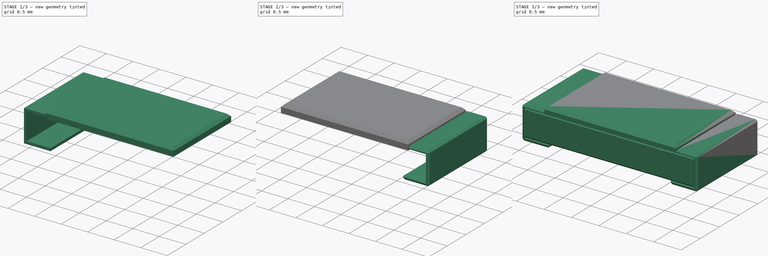
[diagram: build sequence overview — one tinted view per stage of 3, left to right]
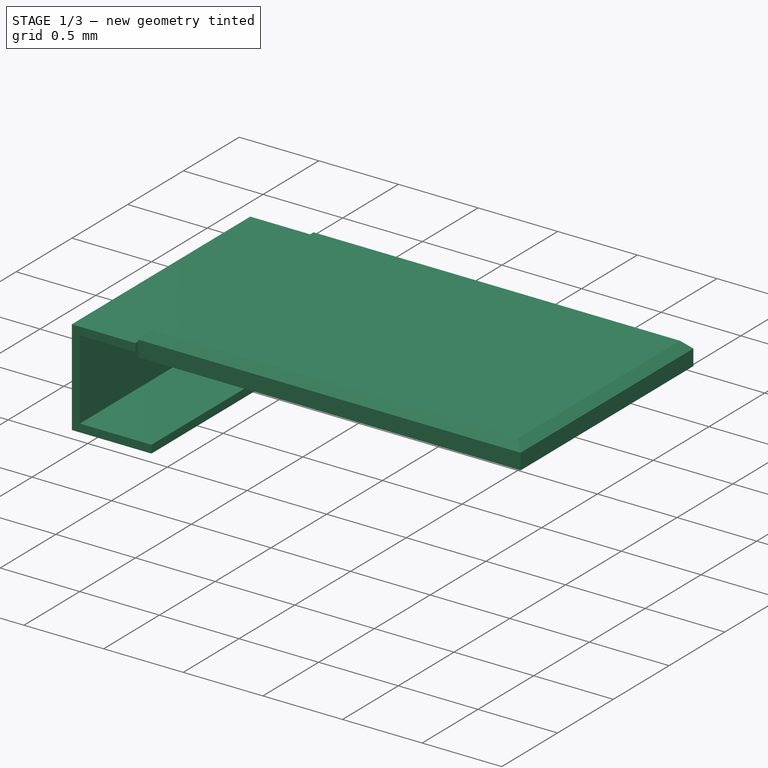
[diagram: stage 1 of 3 — iso view after this stage's code; geometry added in this stage tinted green]
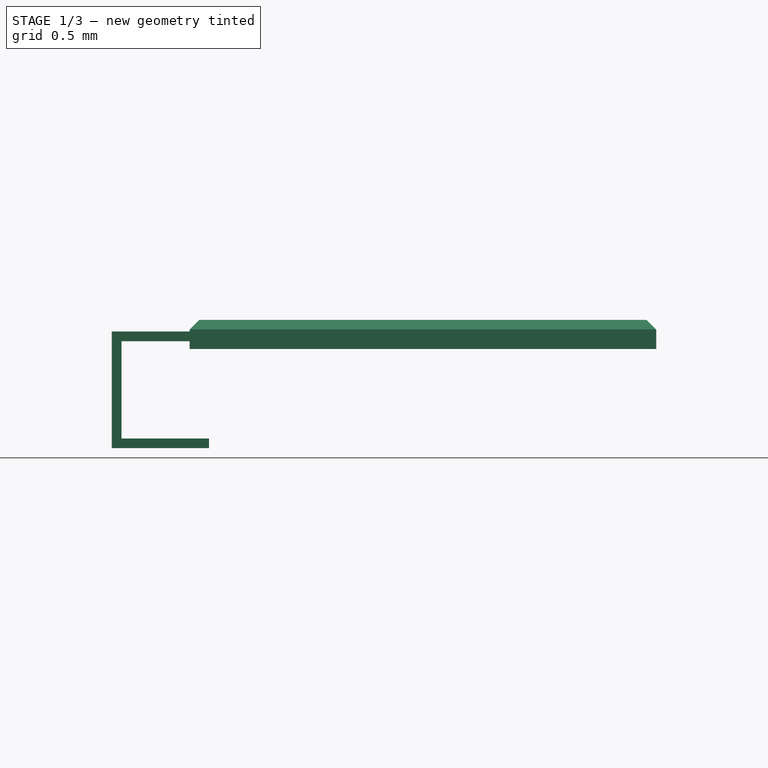
[diagram: stage 1 of 3 — front view after this stage's code; geometry added in this stage tinted green]
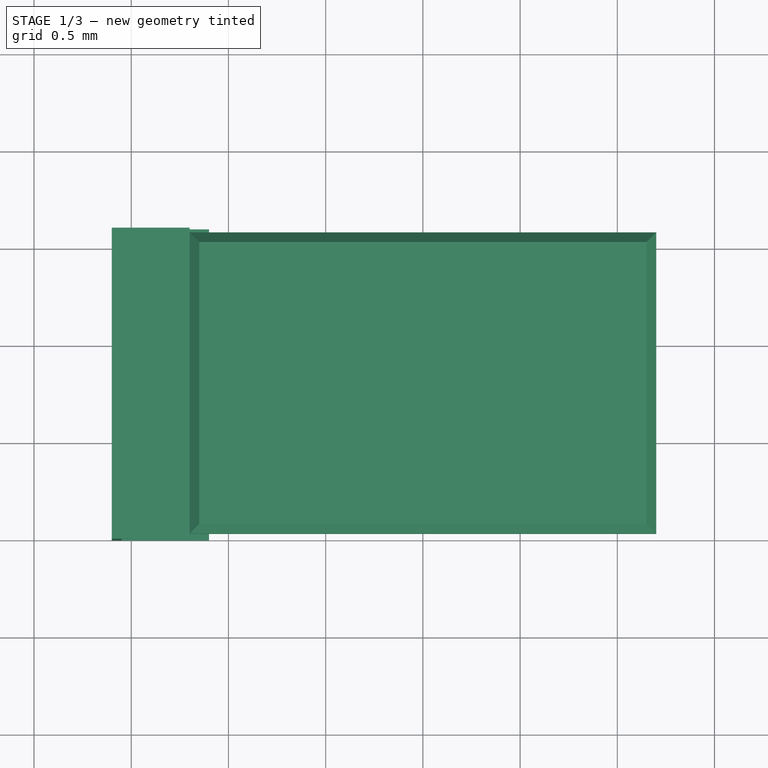
[diagram: stage 1 of 3 — top view after this stage's code; geometry added in this stage tinted green]
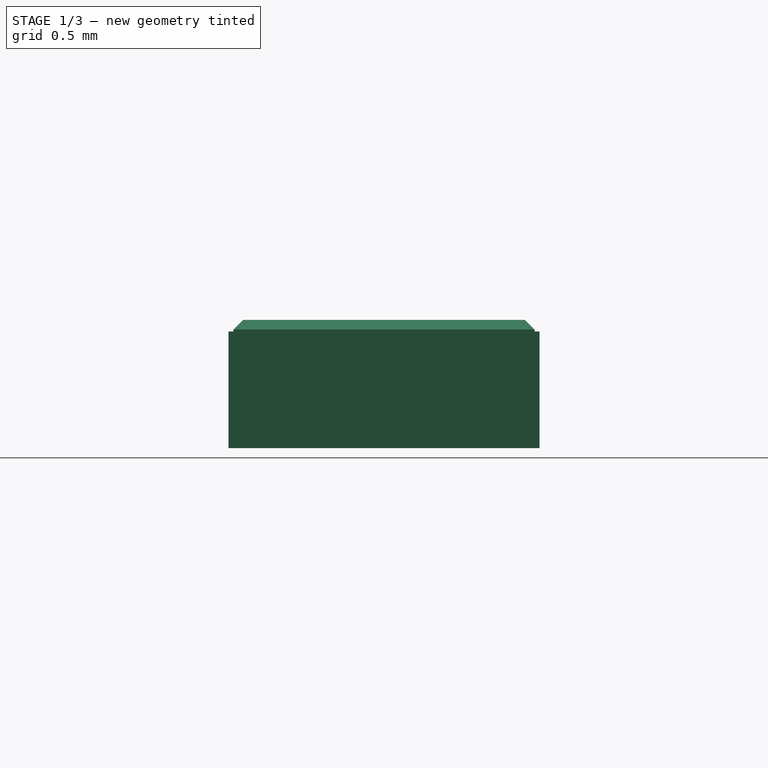
[diagram: stage 1 of 3 — right view after this stage's code; geometry added in this stage tinted green]
FCSTD DOCUMENT  (FreeCAD 0.16R6707 (Git))
Label: RESC3216x66_EIA1206_METRIC3216
License: All rights reserved
LicenseURL: http://en.wikipedia.org/wiki/All_rights_reserved
objects: Part::Chamfer×3, Part::Box×2, Sketcher::SketchObject×1, Part::Extrusion×1, Part::Mirroring×1, Part::MultiFuse×1
note: 9 computed .brp shape members not serialized (recipe doc carries the construction recipe); baked Part::Feature solids carry a one-line shape summary decoded from their .brp

FEATURE [Sketcher::SketchObject] Sketch  label="PadShape"
  Placement = pos=(0,0,0) rot=(1,0,0;1.5708rad)
  sketch-geometry (8):
    g0: LineSegment StartX=-1.1 StartY=0 StartZ=0 EndX=-1.6 EndY=0 EndZ=0
    g1: LineSegment StartX=-1.6 StartY=0 StartZ=0 EndX=-1.6 EndY=0.6 EndZ=0
    g2: LineSegment StartX=-1.6 StartY=0.6 StartZ=0 EndX=-1.2 EndY=0.6 EndZ=0
    g3: LineSegment StartX=-1.2 StartY=0.6 StartZ=0 EndX=-1.2 EndY=0.55 EndZ=0
    g4: LineSegment StartX=-1.2 StartY=0.55 StartZ=0 EndX=-1.55 EndY=0.55 EndZ=0
    g5: LineSegment StartX=-1.1 StartY=0 StartZ=0 EndX=-1.1 EndY=0.05 EndZ=0
    g6: LineSegment StartX=-1.1 StartY=0.05 StartZ=0 EndX=-1.55 EndY=0.05 EndZ=0
    g7: LineSegment StartX=-1.55 StartY=0.55 StartZ=0 EndX=-1.55 EndY=0.05 EndZ=0
  constraints (24):
    c: DistanceX(g0,g-1) = 1.1
    c: DistanceY(g-1,g0) = 0
    c: Distance(g2) = 0.4
    c: Vertical(g3)
    c: Vertical(g5)
    c: Distance(g5) = 0.05
    c: Horizontal(g6)
    c: Coincident(g7,g4)
    c: Coincident(g7,g6)
    c: Vertical(g7)
    c: Distance(g3) = 0.05
    c: DistanceX(g1,g4) = 0.05
    c: Distance(g0) = 0.5
    c: Distance(g1) = 0.6
    c: Coincident(g0,g1)
    c: Coincident(g5,g6)
    c: Coincident(g0,g5)
    c: Coincident(g3,g4)
    c: Coincident(g2,g3)
    c: Coincident(g1,g2)
    c: Horizontal(g2)
    c: Horizontal(g4)
    c: Vertical(g1)
    c: Horizontal(g0)
FEATURE [Part::Extrusion] Extrude
  Base = -> Sketch
  Dir = (0,1.6,0)
  Solid = true
FEATURE [Part::Box] Box001  label="Cube"
  Height = 0.15
  Length = 2.4
  Placement = pos=(-1.2,0.025,0.51) rot=(0,0,1;0rad)
  Width = 1.55
FEATURE [Part::Chamfer] Chamfer002
  Base = -> Box001
  Edges = 4 edges r=0.05: [Edge2,Edge6,Edge10,Edge12]
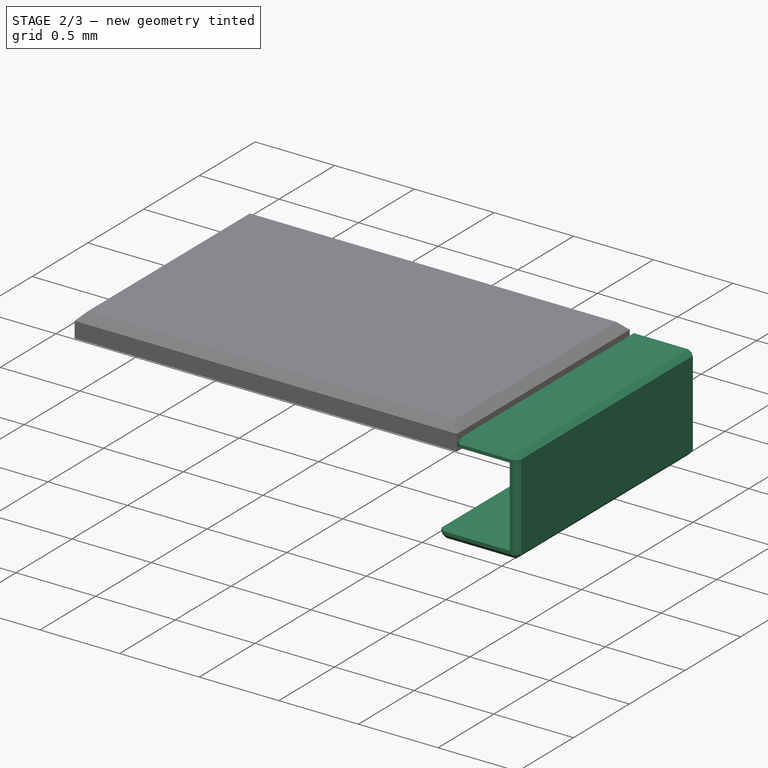
[diagram: stage 2 of 3 — iso view after this stage's code; geometry added in this stage tinted green]
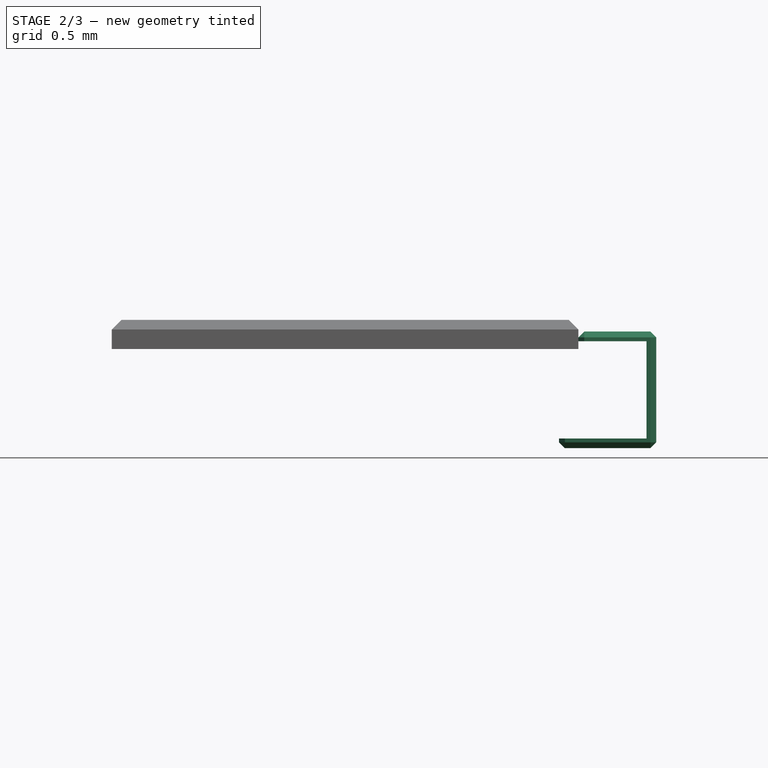
[diagram: stage 2 of 3 — front view after this stage's code; geometry added in this stage tinted green]
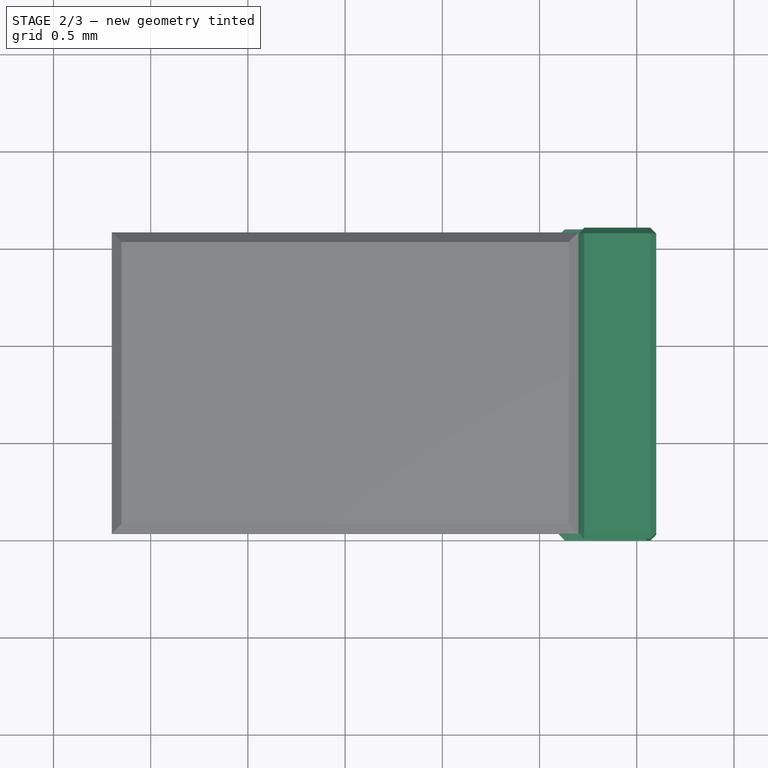
[diagram: stage 2 of 3 — top view after this stage's code; geometry added in this stage tinted green]
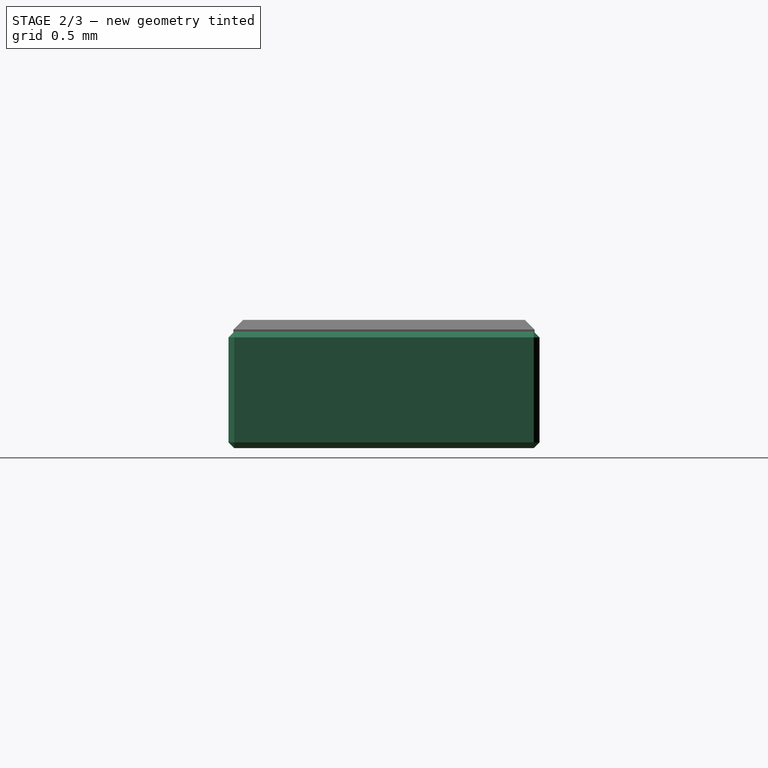
[diagram: stage 2 of 3 — right view after this stage's code; geometry added in this stage tinted green]
FEATURE [Part::Chamfer] Chamfer001  label="ChamferPads"
  Base = -> Extrude
  Edges = 14 edges r=0.03: [Edge1,Edge2,Edge3,Edge4,Edge5,Edge6,Edge7,Edge8,Edge9,Edge10,Edge12,Edge13,Edge23,Edge24]
FEATURE [Part::Mirroring] Part__Mirroring  label="ChamferPads (Mirror #1)"
  Base = (0,0,0)
  Normal = (1,0,0)
  Source = -> Chamfer001
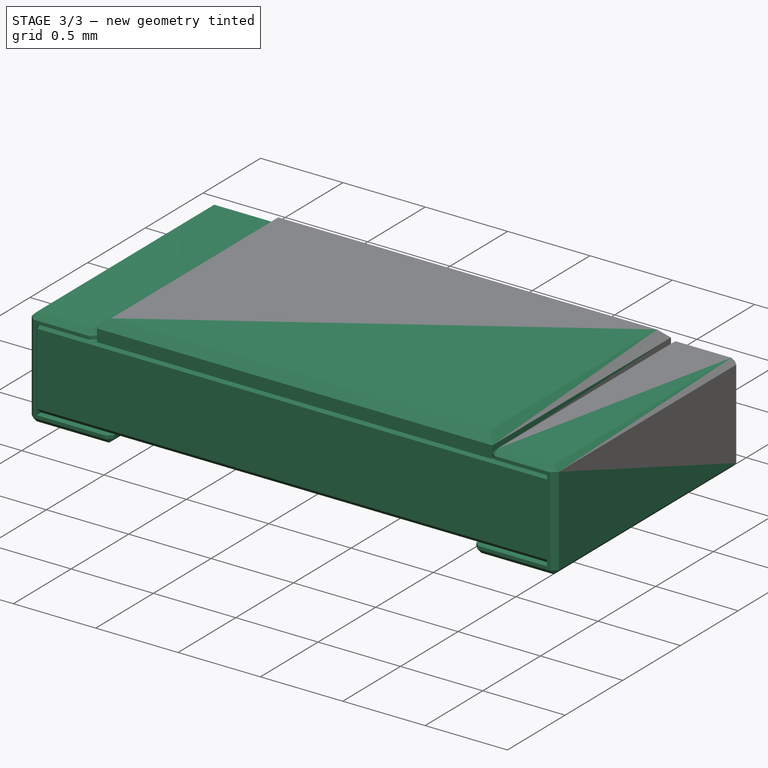
[diagram: stage 3 of 3 — iso view after this stage's code; geometry added in this stage tinted green]
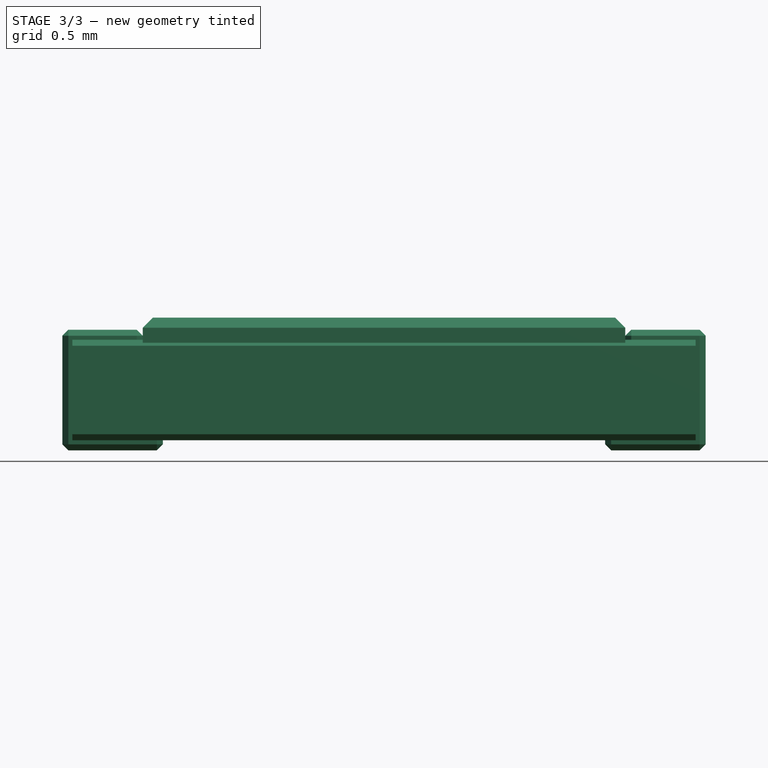
[diagram: stage 3 of 3 — front view after this stage's code; geometry added in this stage tinted green]
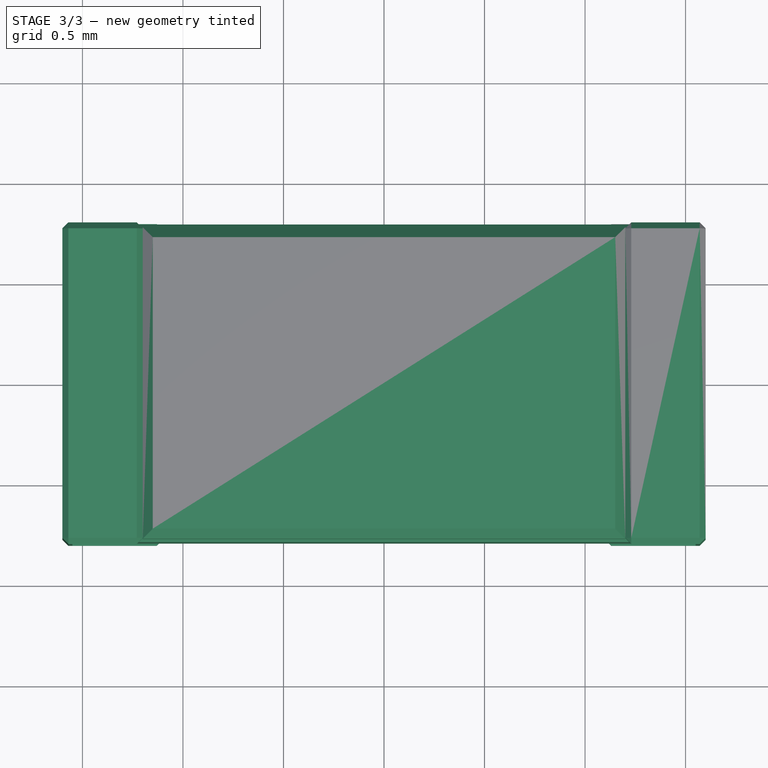
[diagram: stage 3 of 3 — top view after this stage's code; geometry added in this stage tinted green]
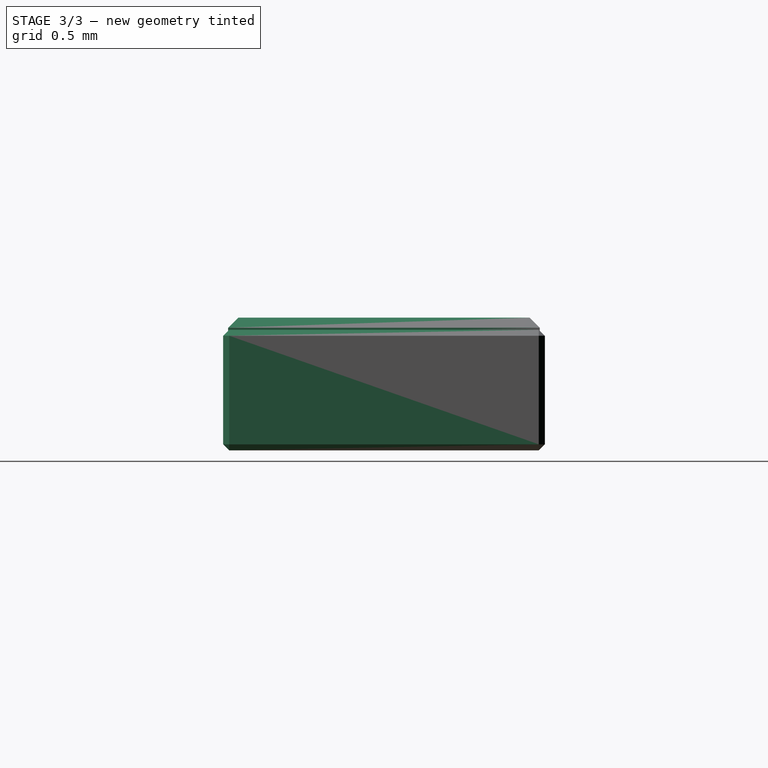
[diagram: stage 3 of 3 — right view after this stage's code; geometry added in this stage tinted green]
FEATURE [Part::Box] Box  label="Body"
  Height = 0.5
  Length = 3.1
  Placement = pos=(-1.55,0.01,0.05) rot=(0,0,1;0rad)
  Width = 1.58
FEATURE [Part::Chamfer] Chamfer  label="ChamferBody"
  Base = -> Box
  Edges = 4 edges r=0.03: [Edge9,Edge10,Edge11,Edge12]
FEATURE [Part::MultiFuse] Fusion
  Placement = pos=(0,-0.8,0) rot=(0,0,1;0rad)
  Shapes = -> [Chamfer002,Chamfer001,Part__Mirroring,Chamfer]
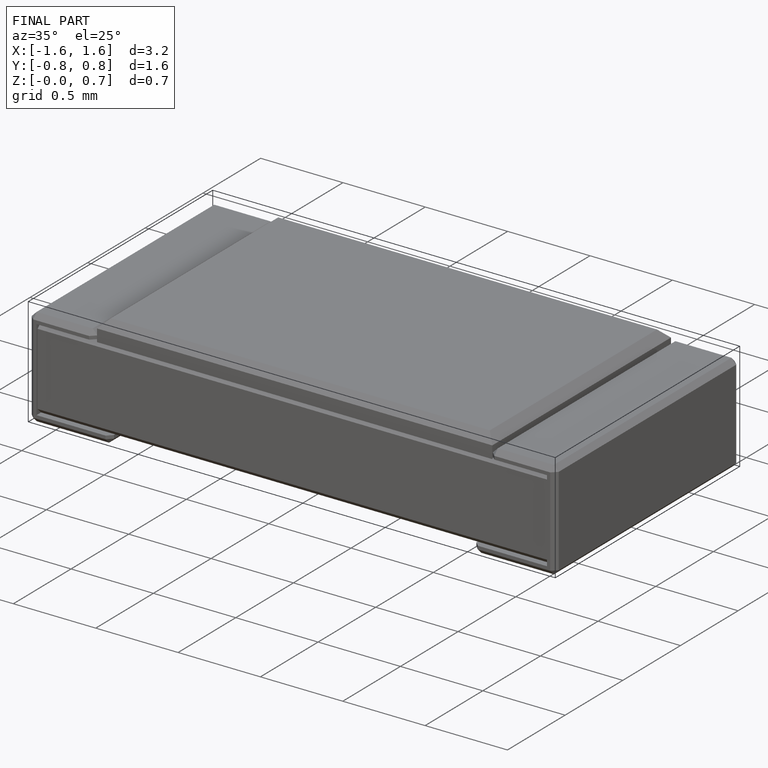
[diagram: finished part — iso view with bounding-box wireframe]
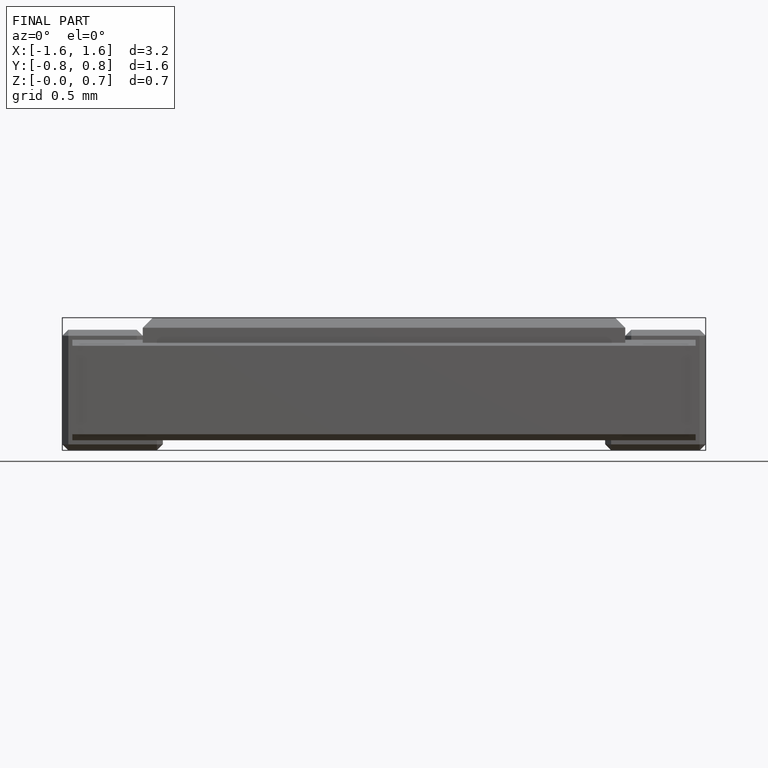
[diagram: finished part — front view with bounding-box wireframe]
